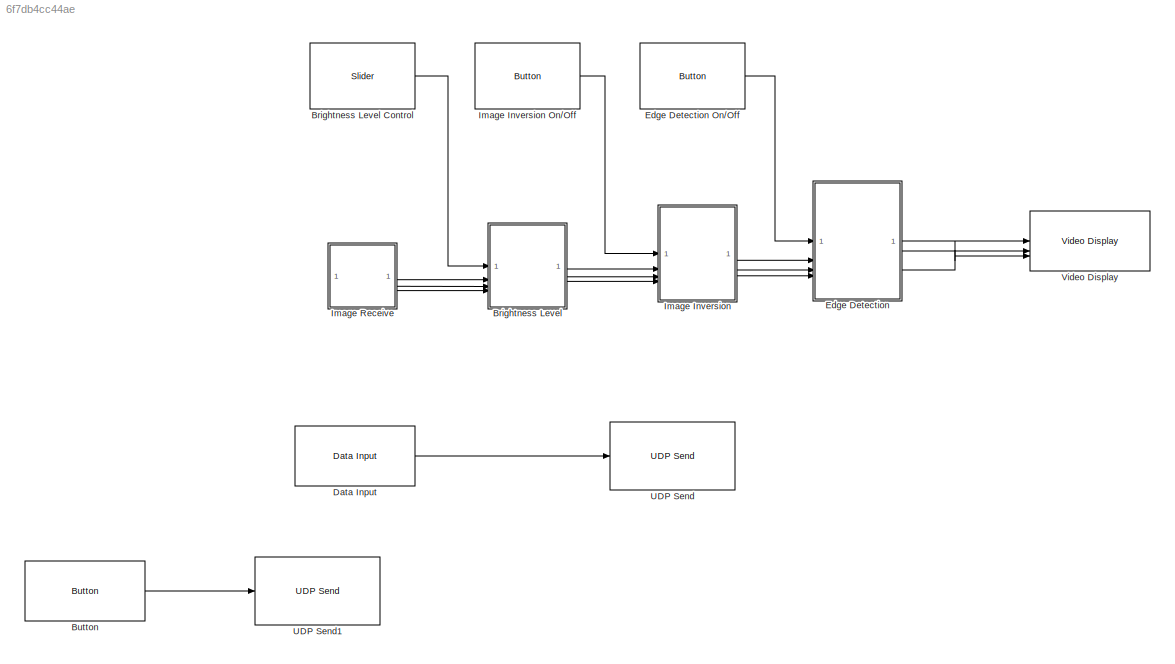
MODEL slx_6f7db4cc44ae
KIND model
CONFIG AbsTol = auto
CONFIG EnableMultiTasking = off
CONFIG FixedStep = auto
CONFIG MaxStep = auto
CONFIG MinStep = auto
CONFIG RelTol = 1e-3
CONFIG SampleTimeConstraint = Unconstrained
CONFIG SolverName = FixedStepAuto
CONFIG StartTime = 0.0
CONFIG StopTime = inf
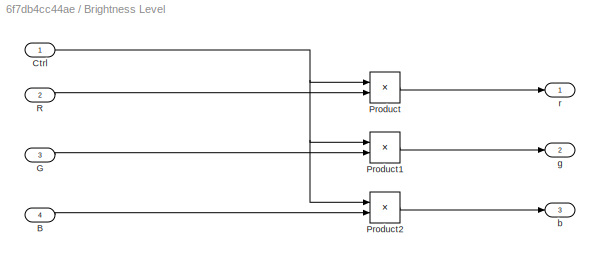
BLOCK [SubSystem] Brightness Level
BLOCK [Reference] Brightness Level Control  REF=androiduilib/Slider
  SourceBlock = androiduilib/Slider
  SourceType = codertarget.internal.androidSlider
BLOCK [Inport] Brightness Level/B
  Port = 4
BLOCK [Inport] Brightness Level/Ctrl
BLOCK [Inport] Brightness Level/G
  Port = 3
BLOCK [Product] Brightness Level/Product
  OutDataTypeStr = uint8
  SaturateOnIntegerOverflow = on
BLOCK [Product] Brightness Level/Product1
  OutDataTypeStr = uint8
  SaturateOnIntegerOverflow = on
BLOCK [Product] Brightness Level/Product2
  OutDataTypeStr = uint8
  SaturateOnIntegerOverflow = on
BLOCK [Inport] Brightness Level/R
  Port = 2
BLOCK [Outport] Brightness Level/b
  Port = 3
BLOCK [Outport] Brightness Level/g
  NameLocation = top
  Port = 2
BLOCK [Outport] Brightness Level/r
BLOCK [Reference] Button  REF=androiduilib/Button
  SourceBlock = androiduilib/Button
  SourceType = codertarget.internal.androidButton
BLOCK [Reference] Data Input  REF=androiduilib/Data Input
  SourceBlock = androiduilib/Data Input
  SourceType = codertarget.internal.androidDataInput
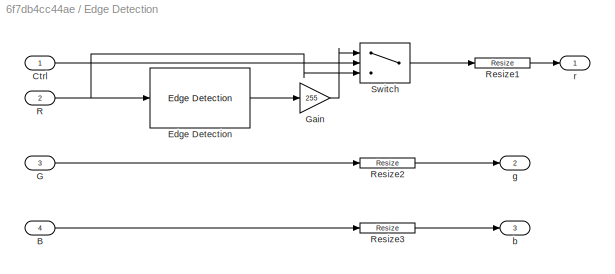
BLOCK [SubSystem] Edge Detection
BLOCK [Reference] Edge Detection On//Off  REF=androiduilib/Button
  SourceBlock = androiduilib/Button
  SourceType = codertarget.internal.androidButton
BLOCK [Inport] Edge Detection/B
  Port = 4
BLOCK [Inport] Edge Detection/Ctrl
BLOCK [Reference] Edge Detection/Edge Detection  REF=visionanalysis/Edge Detection
  SourceBlock = visionanalysis/Edge Detection
  SourceType = Edge Detection
BLOCK [Inport] Edge Detection/G
  Port = 3
BLOCK [Gain] Edge Detection/Gain
  Gain = 255
  OutDataTypeStr = uint8
BLOCK [Inport] Edge Detection/R
  Port = 2
BLOCK [Reference] Edge Detection/Resize1  REF=visiongeotforms/Resize
  SourceBlock = visiongeotforms/Resize
  SourceType = Resize
BLOCK [Reference] Edge Detection/Resize2  REF=visiongeotforms/Resize
  SourceBlock = visiongeotforms/Resize
  SourceType = Resize
BLOCK [Reference] Edge Detection/Resize3  REF=visiongeotforms/Resize
  SourceBlock = visiongeotforms/Resize
  SourceType = Resize
BLOCK [Switch] Edge Detection/Switch
  Criteria = u2 > Threshold
  InputSameDT = off
  SaturateOnIntegerOverflow = off
BLOCK [Outport] Edge Detection/b
  Port = 3
BLOCK [Outport] Edge Detection/g
  Port = 2
BLOCK [Outport] Edge Detection/r
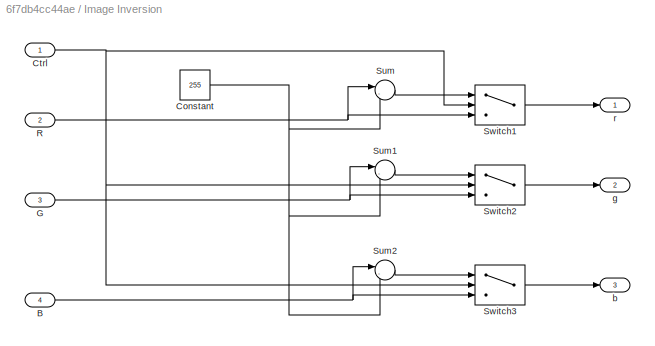
BLOCK [SubSystem] Image Inversion
BLOCK [Reference] Image Inversion On//Off  REF=androiduilib/Button
  SourceBlock = androiduilib/Button
  SourceType = codertarget.internal.androidButton
BLOCK [Inport] Image Inversion/B
  Port = 4
BLOCK [Constant] Image Inversion/Constant
  OutDataTypeStr = uint8
  Value = 255
BLOCK [Inport] Image Inversion/Ctrl
BLOCK [Inport] Image Inversion/G
  Port = 3
BLOCK [Inport] Image Inversion/R
  Port = 2
BLOCK [Sum] Image Inversion/Sum
  Inputs = |-+
BLOCK [Sum] Image Inversion/Sum1
  Inputs = |-+
BLOCK [Sum] Image Inversion/Sum2
  Inputs = |-+
BLOCK [Switch] Image Inversion/Switch1
  Criteria = u2 > Threshold
  InputSameDT = off
  SaturateOnIntegerOverflow = off
BLOCK [Switch] Image Inversion/Switch2
  Criteria = u2 > Threshold
  InputSameDT = off
  SaturateOnIntegerOverflow = off
BLOCK [Switch] Image Inversion/Switch3
  Criteria = u2 > Threshold
  InputSameDT = off
  SaturateOnIntegerOverflow = off
BLOCK [Outport] Image Inversion/b
  Port = 3
BLOCK [Outport] Image Inversion/g
  Port = 2
BLOCK [Outport] Image Inversion/r
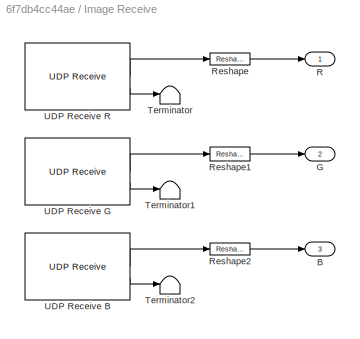
BLOCK [SubSystem] Image Receive
  TreatAsAtomicUnit = on
BLOCK [Outport] Image Receive/B
  Port = 3
BLOCK [Outport] Image Receive/G
  Port = 2
BLOCK [Outport] Image Receive/R
BLOCK [Reshape] Image Receive/Reshape
  OutputDimensionality = Customize
  OutputDimensions = [160,120]
BLOCK [Reshape] Image Receive/Reshape1
  OutputDimensionality = Customize
  OutputDimensions = [160,120]
BLOCK [Reshape] Image Receive/Reshape2
  OutputDimensionality = Customize
  OutputDimensions = [160,120]
BLOCK [Terminator] Image Receive/Terminator
BLOCK [Terminator] Image Receive/Terminator1
BLOCK [Terminator] Image Receive/Terminator2
BLOCK [Reference] Image Receive/UDP Receive B  REF=androidcommunicationlib/UDP Receive
  SourceBlock = androidcommunicationlib/UDP Receive
  SourceType = UDP Receive
BLOCK [Reference] Image Receive/UDP Receive G  REF=androidcommunicationlib/UDP Receive
  SourceBlock = androidcommunicationlib/UDP Receive
  SourceType = UDP Receive
BLOCK [Reference] Image Receive/UDP Receive R  REF=androidcommunicationlib/UDP Receive
  SourceBlock = androidcommunicationlib/UDP Receive
  SourceType = UDP Receive
BLOCK [Reference] UDP Send  REF=androidcommunicationlib/UDP Send
  SourceBlock = androidcommunicationlib/UDP Send
  SourceType = UDP Send
BLOCK [Reference] UDP Send1  REF=androidcommunicationlib/UDP Send
  SourceBlock = androidcommunicationlib/UDP Send
  SourceType = UDP Send
BLOCK [Reference] Video Display  REF=androidaudiovideolib/Video Display
  SourceBlock = androidaudiovideolib/Video Display
  SourceType = codertarget.internal.androidVideoDisplay
LINE Brightness Level Control:1 -> Brightness Level:1
LINE Brightness Level/B:1 -> Brightness Level/Product2:2
NET Brightness Level/Ctrl:1 -> Brightness Level/Product1:1, Brightness Level/Product2:1, Brightness Level/Product:1
LINE Brightness Level/G:1 -> Brightness Level/Product1:2
LINE Brightness Level/Product1:1 -> Brightness Level/g:1
LINE Brightness Level/Product2:1 -> Brightness Level/b:1
LINE Brightness Level/Product:1 -> Brightness Level/r:1
LINE Brightness Level/R:1 -> Brightness Level/Product:2
LINE Brightness Level:1 -> Image Inversion:2
LINE Brightness Level:2 -> Image Inversion:3
LINE Brightness Level:3 -> Image Inversion:4
LINE Button:1 -> UDP Send1:1
LINE Data Input:1 -> UDP Send:1
LINE Edge Detection On//Off:1 -> Edge Detection:1
LINE Edge Detection/B:1 -> Edge Detection/Resize3:1
LINE Edge Detection/Ctrl:1 -> Edge Detection/Switch:2
LINE Edge Detection/Edge Detection:1 -> Edge Detection/Gain:1
LINE Edge Detection/G:1 -> Edge Detection/Resize2:1
LINE Edge Detection/Gain:1 -> Edge Detection/Switch:1
NET Edge Detection/R:1 -> Edge Detection/Edge Detection:1, Edge Detection/Switch:3
LINE Edge Detection/Resize1:1 -> Edge Detection/r:1
LINE Edge Detection/Resize2:1 -> Edge Detection/g:1
LINE Edge Detection/Resize3:1 -> Edge Detection/b:1
LINE Edge Detection/Switch:1 -> Edge Detection/Resize1:1
LINE Edge Detection:1 -> Video Display:1
LINE Edge Detection:2 -> Video Display:2
LINE Edge Detection:3 -> Video Display:3
LINE Image Inversion On//Off:1 -> Image Inversion:1
NET Image Inversion/B:1 -> Image Inversion/Sum2:1, Image Inversion/Switch3:3
NET Image Inversion/Constant:1 -> Image Inversion/Sum1:2, Image Inversion/Sum2:2, Image Inversion/Sum:2
NET Image Inversion/Ctrl:1 -> Image Inversion/Switch1:2, Image Inversion/Switch2:2, Image Inversion/Switch3:2
NET Image Inversion/G:1 -> Image Inversion/Sum1:1, Image Inversion/Switch2:3
NET Image Inversion/R:1 -> Image Inversion/Sum:1, Image Inversion/Switch1:3
LINE Image Inversion/Sum1:1 -> Image Inversion/Switch2:1
LINE Image Inversion/Sum2:1 -> Image Inversion/Switch3:1
LINE Image Inversion/Sum:1 -> Image Inversion/Switch1:1
LINE Image Inversion/Switch1:1 -> Image Inversion/r:1
LINE Image Inversion/Switch2:1 -> Image Inversion/g:1
LINE Image Inversion/Switch3:1 -> Image Inversion/b:1
LINE Image Inversion:1 -> Edge Detection:2
LINE Image Inversion:2 -> Edge Detection:3
LINE Image Inversion:3 -> Edge Detection:4
LINE Image Receive/Reshape1:1 -> Image Receive/G:1
LINE Image Receive/Reshape2:1 -> Image Receive/B:1
LINE Image Receive/Reshape:1 -> Image Receive/R:1
LINE Image Receive/UDP Receive B:1 -> Image Receive/Reshape2:1
LINE Image Receive/UDP Receive B:2 -> Image Receive/Terminator2:1
LINE Image Receive/UDP Receive G:1 -> Image Receive/Reshape1:1
LINE Image Receive/UDP Receive G:2 -> Image Receive/Terminator1:1
LINE Image Receive/UDP Receive R:1 -> Image Receive/Reshape:1
LINE Image Receive/UDP Receive R:2 -> Image Receive/Terminator:1
LINE Image Receive:1 -> Brightness Level:2
LINE Image Receive:2 -> Brightness Level:3
LINE Image Receive:3 -> Brightness Level:4
note: NET lines group one-source signal fan-out (src -> all destinations, sorted); 1:1 wires keep LINE
